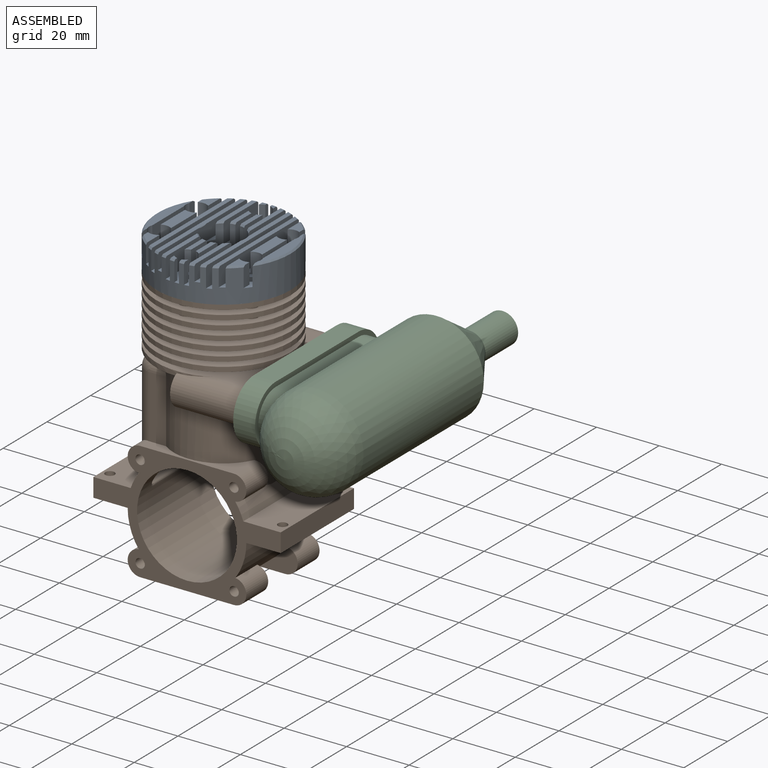
[diagram: assembled view]
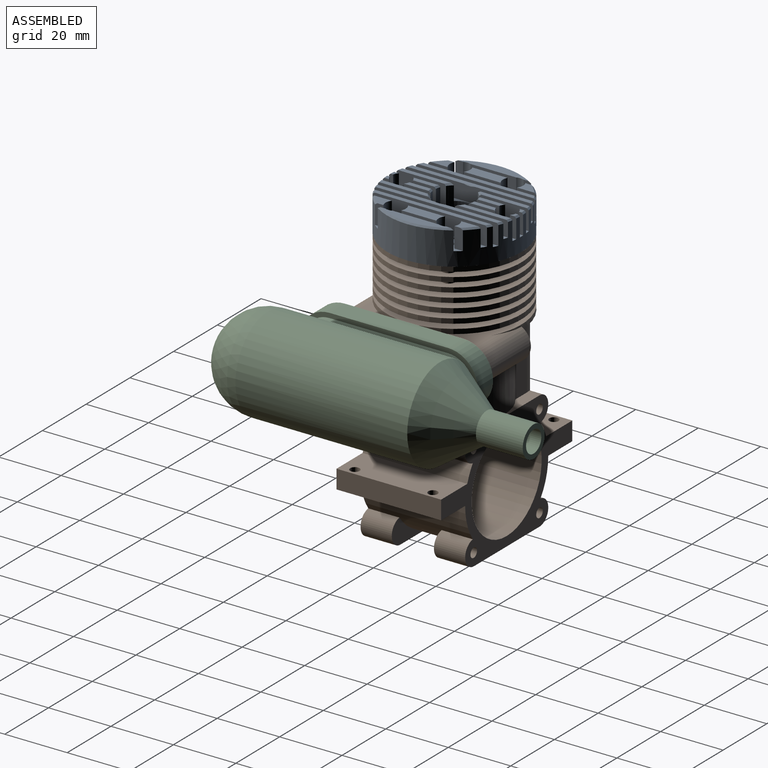
[diagram: assembled view, second angle]
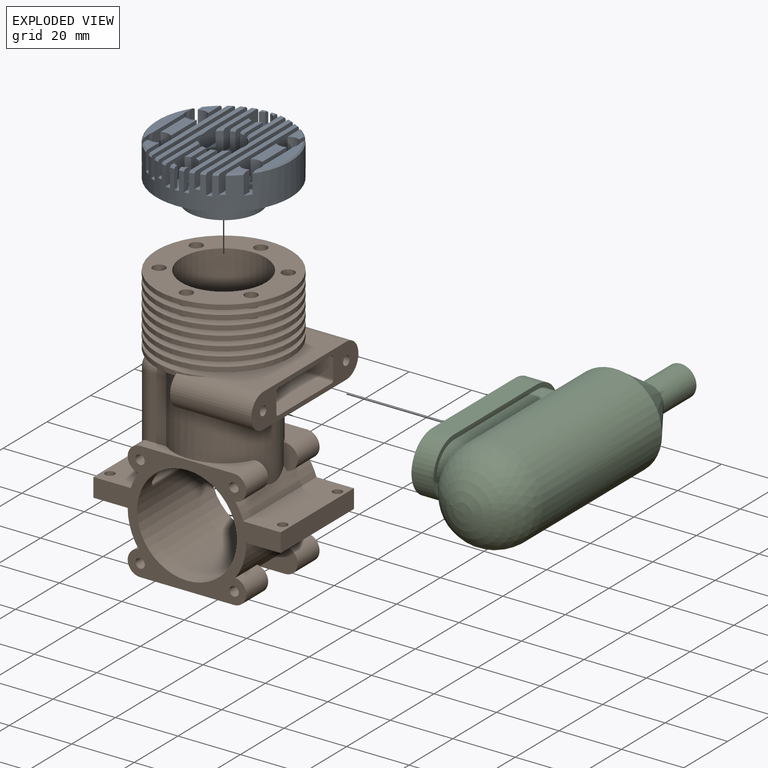
[diagram: exploded view]
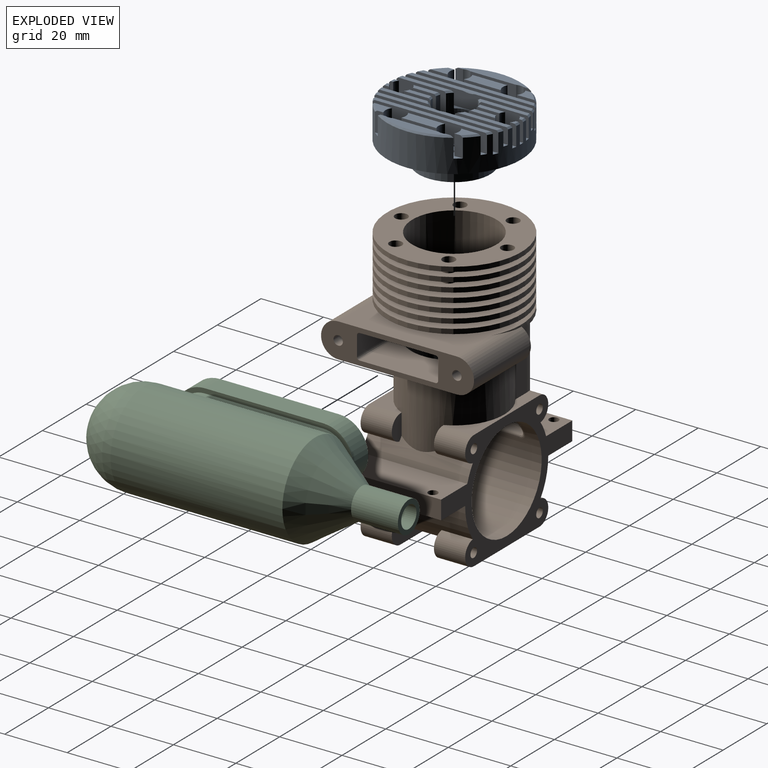
[diagram: exploded view, second angle]
ASSEMBLY  parts=3 mates=3
PART A: 145 faces, bbox 43.7x43.7x18.7 mm
  f0: plane 11.83x3.5mm, normal (0,0,1), area 38mm2, adj f3,f8,f139,f142
  f1: plane 5.6x3.5mm, normal (0,0,1), area 12.4mm2, adj f2,f7,f53,f142
  f2: plane 6.23x6.01mm, normal (1,0,0), area 37.2mm2, adj f1,f53,f54,f117,f142
  f3: plane 11.83x6mm, normal (1,0,0), area 71mm2, adj f0,f117,f139,f142
  f4: plane 22.44x3.25mm, normal (0,0,1), area 48.7mm2, adj f5,f6,f11,f103,f141,f144
  f5: plane 6.51x2.46mm, normal (1,0,0), area 15.7mm2, adj f4,f54,f103,f122,f144
  f6: plane 14.64x6.5mm, normal (1,0,0), area 95.1mm2, adj f4,f122,f141,f144
  f7: plane 6.51x2.72mm, normal (-1,0,0), area 17.4mm2, adj f1,f53,f54,f122,f142
  f8: plane 11.26x6.5mm, normal (-1,0,0), area 73.2mm2, adj f0,f122,f139,f142
  f9: plane 5.6x3.5mm, normal (0,0,1), area 12.4mm2, adj f10,f12,f52,f139
  f10: plane 6.23x6.01mm, normal (1,0,0), area 37.2mm2, adj f9,f52,f54,f117,f139
  f11: plane 6.51x2.46mm, normal (1,0,0), area 15.7mm2, adj f4,f54,f103,f122,f141
  f12: plane 6.51x2.72mm, normal (-1,0,0), area 17.4mm2, adj f9,f52,f54,f122,f139
  f13: plane 1.64x1.5mm, normal (0,0,1), area 1.7mm2, adj f19,f25,f79,f137
  f14: plane 8.03x1.5mm, normal (0,0,1), area 11mm2, adj f18,f24,f81,f136
  f15: plane 1.64x1.5mm, normal (0,0,1), area 1.7mm2, adj f21,f23,f82,f135
  f16: plane 8.03x1.5mm, normal (0,0,1), area 11mm2, adj f20,f22,f84,f134
  f17: plane 16.19x7.5mm, normal (0,0,1), area 79.1mm2, adj f18,f19,f20,f21,f22,f23,f24,f25
  f18: plane 7.38x6.5mm, normal (-1,0,0), area 47.9mm2, adj f14,f17,f76,f81,f136
  f19: plane 6.5x1.32mm, normal (-1,0,0), area 8.5mm2, adj f13,f17,f54,f79,f137
  f20: plane 7.38x6.5mm, normal (1,0,0), area 47.9mm2, adj f16,f17,f76,f84,f134
  f21: plane 6.5x1.32mm, normal (1,0,0), area 8.5mm2, adj f15,f17,f54,f82,f135
  f22: plane 8.56x6.51mm, normal (-1,0,0), area 55.5mm2, adj f16,f17,f76,f84,f134
  f23: plane 6.5x2.04mm, normal (-1,0,0), area 13.1mm2, adj f15,f17,f54,f82,f135
  f24: plane 8.56x6.51mm, normal (1,0,0), area 55.5mm2, adj f14,f17,f76,f81,f136
  f25: plane 6.5x2.04mm, normal (1,0,0), area 13.1mm2, adj f13,f17,f54,f79,f137
  f26: plane 22.44x3.25mm, normal (0,0,1), area 48.7mm2, adj f31,f32,f37,f55,f130,f133
  f27: plane 11.83x6mm, normal (-1,0,0), area 71mm2, adj f30,f118,f129,f132
  f28: plane 6.23x6.01mm, normal (-1,0,0), area 37.2mm2, adj f29,f54,f56,f118,f132
  f29: plane 5.6x3.5mm, normal (0,0,1), area 12.4mm2, adj f28,f34,f56,f132
  f30: plane 11.83x3.5mm, normal (0,0,1), area 38mm2, adj f27,f33,f129,f132
  f31: plane 14.64x6.5mm, normal (-1,0,0), area 95.1mm2, adj f26,f121,f130,f133
  f32: plane 6.51x2.46mm, normal (-1,0,0), area 15.7mm2, adj f26,f54,f55,f121,f133
  f33: plane 11.26x6.5mm, normal (1,0,0), area 73.2mm2, adj f30,f121,f129,f132
  f34: plane 6.51x2.72mm, normal (1,0,0), area 17.4mm2, adj f29,f54,f56,f121,f132
  f35: plane 6.23x6.01mm, normal (-1,0,0), area 37.2mm2, adj f36,f54,f65,f118,f129
  f36: plane 5.6x3.5mm, normal (0,0,1), area 12.4mm2, adj f35,f38,f65,f129
  f37: plane 6.51x2.46mm, normal (-1,0,0), area 15.7mm2, adj f26,f54,f55,f121,f130
  f38: plane 6.51x2.72mm, normal (1,0,0), area 17.4mm2, adj f36,f54,f65,f121,f129
  f39: plane 8.03x1.5mm, normal (0,0,1), area 11mm2, adj f44,f49,f85,f124
  f40: plane 1.64x1.5mm, normal (0,0,1), area 1.7mm2, adj f43,f48,f83,f123
  f41: plane 8.03x1.5mm, normal (0,0,1), area 11mm2, adj f46,f51,f99,f126
  f42: plane 1.64x1.5mm, normal (0,0,1), area 1.7mm2, adj f45,f50,f98,f125
  f43: plane 6.5x1.32mm, normal (1,0,0), area 8.5mm2, adj f40,f47,f54,f83,f123
  f44: plane 7.38x6.5mm, normal (1,0,0), area 47.9mm2, adj f39,f47,f76,f85,f124
  f45: plane 6.5x1.32mm, normal (-1,0,0), area 8.5mm2, adj f42,f47,f54,f98,f125
  f46: plane 7.38x6.5mm, normal (-1,0,0), area 47.9mm2, adj f41,f47,f76,f99,f126
  f47: plane 16.19x7.5mm, normal (0,0,1), area 79.1mm2, adj f43,f44,f45,f46,f48,f49,f50,f51
  f48: plane 6.5x2.04mm, normal (-1,0,0), area 13.1mm2, adj f40,f47,f54,f83,f123
  f49: plane 8.56x6.51mm, normal (-1,0,0), area 55.5mm2, adj f39,f47,f76,f85,f124
  f50: plane 6.5x2.04mm, normal (1,0,0), area 13.1mm2, adj f42,f47,f54,f98,f125
  f51: plane 8.56x6.51mm, normal (1,0,0), area 55.5mm2, adj f41,f47,f76,f99,f126
  f52: cone r=21.5mm half-angle=45deg, axis (0,0,-1), area 3.4mm2, adj f9,f10,f12,f54
  f53: cone r=21.5mm half-angle=45deg, axis (0,0,-1), area 3.4mm2, adj f1,f2,f7,f54
  f54: cylinder r=21.5mm len=43mm, axis (0,0,-1), area 1197.5mm2, adj f2,f5,f7,f10,f11,f12,f17,f19
  f55: cone r=21.5mm half-angle=45deg, axis (0,0,-1), area 17.5mm2, adj f26,f32,f37,f54
  f56: cone r=21.5mm half-angle=45deg, axis (0,0,-1), area 3.4mm2, adj f28,f29,f34,f54
  f57: plane 17.05x5.03mm, normal (1,0,0), area 84.8mm2, adj f54,f71,f73,f75,f76,f120
  f58: plane 17.05x5.03mm, normal (1,0,0), area 84.8mm2, adj f54,f76,f77,f78,f80,f120
  f59: plane 41.53x5.71mm, normal (-1,0,0), area 203.3mm2, adj f54,f69,f70,f72,f74,f120
  f60: plane 17.05x5.03mm, normal (-1,0,0), area 84.8mm2, adj f54,f76,f86,f88,f90,f119
  f61: plane 17.05x5.03mm, normal (-1,0,0), area 84.8mm2, adj f54,f76,f87,f89,f91,f119
  f62: plane 41.53x5.71mm, normal (1,0,0), area 203.2mm2, adj f54,f92,f93,f94,f106,f119
  f63: plane 36.65x6mm, normal (1,0,0), area 219.6mm2, adj f54,f66,f67,f68,f118
  f64: plane 36.65x6mm, normal (-1,0,0), area 219.6mm2, adj f54,f95,f96,f97,f117
  f65: cone r=21.5mm half-angle=45deg, axis (0,0,-1), area 3.4mm2, adj f35,f36,f38,f54
  f66: cone r=21.5mm half-angle=45deg, axis (0,0,-1), area 1.2mm2, adj f54,f63,f67,f114
  f67: plane 37.2x1.5mm, normal (0,0,1), area 54.5mm2, adj f63,f66,f68,f114
  f68: cone r=21.5mm half-angle=45deg, axis (0,0,-1), area 1.2mm2, adj f54,f63,f67,f114
  f69: cone r=21.5mm half-angle=45deg, axis (0,0,-1), area 1.1mm2, adj f54,f59,f70,f115
  f70: plane 39.77x1.5mm, normal (0,0,1), area 58.2mm2, adj f59,f69,f72,f74,f115
  f71: plane 16.03x1.5mm, normal (0,0,1), area 22.8mm2, adj f57,f73,f75,f113
  f72: cone r=21.5mm half-angle=45deg, axis (0,0,-1), area 1.1mm2, adj f54,f59,f70,f115
  f73: cone r=21.5mm half-angle=45deg, axis (0,0,-1), area 1.1mm2, adj f54,f57,f71,f113
  f74: cone r=6.5mm half-angle=45deg, axis (0,0,1), area 0mm2, adj f59,f70
  f75: cone r=6.5mm half-angle=45deg, axis (0,0,1), area 1.4mm2, adj f57,f71,f76,f113
  f76: cylinder r=6.5mm len=13mm, axis (0,0,1), area 255.4mm2, adj f17,f18,f20,f22,f24,f44,f46,f47
  f77: plane 16.03x1.5mm, normal (0,0,1), area 22.8mm2, adj f58,f78,f80,f112
  f78: cone r=21.5mm half-angle=45deg, axis (0,0,-1), area 1.1mm2, adj f54,f58,f77,f112
  f79: cone r=21.5mm half-angle=45deg, axis (0,0,-1), area 1.1mm2, adj f13,f19,f25,f54
  f80: cone r=6.5mm half-angle=45deg, axis (0,0,1), area 1.4mm2, adj f58,f76,f77,f112
  f81: cone r=6.5mm half-angle=45deg, axis (0,0,1), area 1.1mm2, adj f14,f18,f24,f76
  f82: cone r=21.5mm half-angle=45deg, axis (0,0,-1), area 1.1mm2, adj f15,f21,f23,f54
  f83: cone r=21.5mm half-angle=45deg, axis (0,0,-1), area 1.1mm2, adj f40,f43,f48,f54
  f84: cone r=6.5mm half-angle=45deg, axis (0,0,1), area 1.1mm2, adj f16,f20,f22,f76
  f85: cone r=6.5mm half-angle=45deg, axis (0,0,1), area 1.1mm2, adj f39,f44,f49,f76
  f86: plane 16.03x1.5mm, normal (0,0,1), area 22.8mm2, adj f60,f88,f90,f111
  f87: plane 16.03x1.5mm, normal (0,0,1), area 22.8mm2, adj f61,f89,f91,f110
  f88: cone r=21.5mm half-angle=45deg, axis (0,0,-1), area 1.1mm2, adj f54,f60,f86,f111
  f89: cone r=21.5mm half-angle=45deg, axis (0,0,-1), area 1.1mm2, adj f54,f61,f87,f110
  f90: cone r=6.5mm half-angle=45deg, axis (0,0,1), area 1.4mm2, adj f60,f76,f86,f111
  f91: cone r=6.5mm half-angle=45deg, axis (0,0,1), area 1.4mm2, adj f61,f76,f87,f110
  f92: plane 39.77x1.5mm, normal (0,0,1), area 58.2mm2, adj f62,f93,f94,f106,f107
  f93: cone r=21.5mm half-angle=45deg, axis (0,0,-1), area 1.1mm2, adj f54,f62,f92,f107
  f94: cone r=21.5mm half-angle=45deg, axis (0,0,-1), area 1.1mm2, adj f54,f62,f92,f107
  f95: plane 37.2x1.5mm, normal (0,0,1), area 54.5mm2, adj f64,f96,f97,f108
  f96: cone r=21.5mm half-angle=45deg, axis (0,0,-1), area 1.2mm2, adj f54,f64,f95,f108
  f97: cone r=21.5mm half-angle=45deg, axis (0,0,-1), area 1.2mm2, adj f54,f64,f95,f108
  f98: cone r=21.5mm half-angle=45deg, axis (0,0,-1), area 1.1mm2, adj f42,f45,f50,f54
  f99: cone r=6.5mm half-angle=45deg, axis (0,0,1), area 1.1mm2, adj f41,f46,f51,f76
  f100: plane 23x23mm, normal (0,0,-1), area 396.5mm2, adj f101,f104
  f101: cylinder r=11.5mm len=23mm, axis (0,0,-1), area 505.8mm2, adj f100,f102
  f102: plane 43x43mm, normal (0,0,-1), area 994.3mm2, adj f54,f101,f127,f128,f131,f138,f140,f143
  f103: cone r=21.5mm half-angle=45deg, axis (0,0,-1), area 17.5mm2, adj f4,f5,f11,f54
  f104: cylinder r=2.46mm len=8mm, axis (0,0,1), area 123.7mm2, adj f100,f105
  f105: plane 13x13mm, normal (0,0,1), area 113.7mm2, adj f76,f104
  f106: cone r=6.5mm half-angle=45deg, axis (0,0,1), area 0mm2, adj f62,f92
  f107: plane 39.71x6.5mm, normal (-1,0,0), area 257.8mm2, adj f54,f92,f93,f94,f109
  f108: plane 38.33x6.5mm, normal (1,0,0), area 248.8mm2, adj f54,f95,f96,f97,f109
  f109: plane 39.71x1.5mm, normal (0,0,1), area 58.6mm2, adj f54,f107,f108
  f110: plane 15.88x6.51mm, normal (1,0,0), area 102.8mm2, adj f47,f54,f76,f87,f89,f91
  f111: plane 15.88x6.51mm, normal (1,0,0), area 102.8mm2, adj f17,f54,f76,f86,f88,f90
  f112: plane 15.88x6.51mm, normal (-1,0,0), area 102.8mm2, adj f47,f54,f76,f77,f78,f80
  f113: plane 15.88x6.51mm, normal (-1,0,0), area 102.8mm2, adj f17,f54,f71,f73,f75,f76
  f114: plane 38.33x6.5mm, normal (-1,0,0), area 248.8mm2, adj f54,f66,f67,f68,f116
  f115: plane 39.71x6.5mm, normal (1,0,0), area 257.8mm2, adj f54,f69,f70,f72,f116
  f116: plane 39.71x1.5mm, normal (0,0,1), area 58.6mm2, adj f54,f114,f115
  f117: plane 36.64x1.5mm, normal (0,0,1), area 44.3mm2, adj f2,f3,f10,f54,f64,f139,f142
  f118: plane 36.64x1.5mm, normal (0,0,1), area 44.3mm2, adj f27,f28,f35,f54,f63,f129,f132
  f119: plane 41.7x1.5mm, normal (0,0,1), area 55.4mm2, adj f54,f60,f61,f62,f76
  f120: plane 41.7x1.5mm, normal (0,0,1), area 55.4mm2, adj f54,f57,f58,f59,f76
  f121: plane 28.16x6.5mm, normal (0,0,1), area 78.3mm2, adj f31,f32,f33,f34,f37,f38,f54,f128
  f122: plane 28.16x6.5mm, normal (0,0,1), area 78.3mm2, adj f5,f6,f7,f8,f11,f12,f54,f139
  f123: cylinder r=3.25mm len=6.5mm, axis (0,0,1), area 11.2mm2, adj f40,f43,f47,f48
  f124: cylinder r=3.25mm len=6.5mm, axis (0,0,1), area 11.2mm2, adj f39,f44,f47,f49
  f125: cylinder r=3.25mm len=6.5mm, axis (0,0,1), area 11.2mm2, adj f42,f45,f47,f50
  f126: cylinder r=3.25mm len=6.5mm, axis (0,0,1), area 11.2mm2, adj f41,f46,f47,f51
  f127: cylinder r=1.5mm len=4.5mm, axis (0,0,1), area 42.4mm2, adj f47,f102
  f128: cylinder r=1.5mm len=4.5mm, axis (0,0,1), area 42.4mm2, adj f102,f121
  f129: cylinder r=3.25mm len=6.5mm, axis (0,0,1), area 51.2mm2, adj f27,f30,f33,f35,f36,f38,f118,f121
  f130: cylinder r=3.25mm len=6.5mm, axis (0,0,1), area 15.7mm2, adj f26,f31,f37,f121
  f131: cylinder r=1.5mm len=4.5mm, axis (0,0,1), area 42.4mm2, adj f102,f121
  f132: cylinder r=3.25mm len=6.5mm, axis (0,0,1), area 51.2mm2, adj f27,f28,f29,f30,f33,f34,f118,f121
  f133: cylinder r=3.25mm len=6.5mm, axis (0,0,1), area 15.7mm2, adj f26,f31,f32,f121
  f134: cylinder r=3.25mm len=6.5mm, axis (0,0,1), area 11.2mm2, adj f16,f17,f20,f22
  f135: cylinder r=3.25mm len=6.5mm, axis (0,0,1), area 11.2mm2, adj f15,f17,f21,f23
  f136: cylinder r=3.25mm len=6.5mm, axis (0,0,1), area 11.2mm2, adj f14,f17,f18,f24
  f137: cylinder r=3.25mm len=6.5mm, axis (0,0,1), area 11.2mm2, adj f13,f17,f19,f25
  f138: cylinder r=1.5mm len=4.5mm, axis (0,0,1), area 42.4mm2, adj f17,f102
  f139: cylinder r=3.25mm len=6.5mm, axis (0,0,1), area 51.2mm2, adj f0,f3,f8,f9,f10,f12,f117,f122
  f140: cylinder r=1.5mm len=4.5mm, axis (0,0,1), area 42.4mm2, adj f102,f122
  f141: cylinder r=3.25mm len=6.5mm, axis (0,0,1), area 15.7mm2, adj f4,f6,f11,f122
  f142: cylinder r=3.25mm len=6.5mm, axis (0,0,1), area 51.2mm2, adj f0,f1,f2,f3,f7,f8,f117,f122
  f143: cylinder r=1.5mm len=4.5mm, axis (0,0,1), area 42.4mm2, adj f102,f122
  f144: cylinder r=3.25mm len=6.5mm, axis (0,0,1), area 15.7mm2, adj f4,f5,f6,f122
PART B: 197 faces, bbox 60.8x49x86.5 mm
  f0: cylinder r=16mm len=11mm, axis (0,0,-1), area 19.6mm2, adj f39,f44,f90,f110
  f1: cylinder r=16mm len=11mm, axis (0,0,-1), area 19.6mm2, adj f43,f48,f89,f109
  f2: cylinder r=16mm len=12.7mm, axis (0,0,-1), area 19.6mm2, adj f39,f44,f106,f110
  f3: cylinder r=16mm len=12.7mm, axis (0,0,-1), area 19.6mm2, adj f43,f48,f105,f109
  f4: cylinder r=16mm len=11mm, axis (0,0,-1), area 19.6mm2, adj f39,f44,f102,f106
  f5: cylinder r=16mm len=11mm, axis (0,0,-1), area 19.6mm2, adj f43,f48,f101,f105
  f6: cylinder r=16mm len=11mm, axis (0,0,-1), area 19.6mm2, adj f39,f44,f98,f102
  f7: cylinder r=16mm len=11mm, axis (0,0,-1), area 19.6mm2, adj f43,f48,f97,f101
  f8: cylinder r=16mm len=12.7mm, axis (0,0,-1), area 19.6mm2, adj f39,f44,f94,f98
  f9: cylinder r=16mm len=12.7mm, axis (0,0,-1), area 19.6mm2, adj f43,f48,f93,f97
  f10: cylinder r=4mm len=10mm, axis (0,1,0), area 120.9mm2, adj f12,f13,f14,f25
  f11: cylinder r=4mm len=7.97mm, axis (0,1,0), area 64.5mm2, adj f12,f14,f15,f16,f17,f82
  f12: plane 30x10mm, normal (0,0,1), area 90.9mm2, adj f10,f11,f13,f14,f24,f71,f82
  f13: plane 7.97x4.49mm, normal (0,-1,0), area 28.4mm2, adj f10,f12,f24,f25
  f14: plane 60x38mm, normal (0,1,0), area 670.5mm2, adj f10,f11,f12,f17,f25,f31,f32,f34
  f15: cylinder r=5mm len=7.76mm, axis (0,0,-1), area 19.9mm2, adj f11,f16,f17,f81
  f16: cylinder r=21.5mm len=33mm, axis (0,0,-1), area 716.9mm2, adj f11,f15,f19,f68,f81,f82,f159,f162
  f17: cylinder r=19mm len=5.28mm, axis (0,1,0), area 25.9mm2, adj f11,f14,f15,f81
  f18: plane 30x10mm, normal (0,0,1), area 90.9mm2, adj f19,f20,f21,f22,f23,f24,f159
  f19: cylinder r=4mm len=7.97mm, axis (0,-1,0), area 64.5mm2, adj f16,f18,f22,f37,f159,f162
  f20: cylinder r=4mm len=10mm, axis (0,-1,0), area 120.9mm2, adj f18,f21,f22,f25
  f21: plane 7.97x4.49mm, normal (0,1,0), area 28.4mm2, adj f18,f20,f24,f25
  f22: plane 60x38mm, normal (0,-1,0), area 670.5mm2, adj f18,f19,f20,f25,f26,f27,f29,f36
  f23: plane 20x5.1mm, normal (0,-1,0), area 102.1mm2, adj f18,f24,f159,f161
  f24: cylinder r=16mm len=34.75mm, axis (0,0,-1), area 1505.8mm2, adj f12,f13,f18,f21,f23,f25,f69,f70
  f25: cylinder r=19mm len=33.5mm, axis (0,1,0), area 188.4mm2, adj f10,f13,f14,f20,f21,f22,f24,f85
  f26: cylinder r=4mm len=10mm, axis (0,-1,0), area 120.9mm2, adj f22,f28,f29,f36
  f27: cylinder r=4mm len=10mm, axis (0,-1,0), area 120.9mm2, adj f22,f29,f30,f36
  f28: plane 19x7.97mm, normal (0,1,0), area 58.3mm2, adj f26,f29,f36
  f29: plane 30x10mm, normal (0,0,-1), area 300mm2, adj f22,f26,f27,f28,f30
  f30: plane 19x7.97mm, normal (0,1,0), area 58.3mm2, adj f27,f29,f36
  f31: cylinder r=4mm len=10mm, axis (0,1,0), area 120.9mm2, adj f14,f34,f35,f36
  f32: cylinder r=4mm len=10mm, axis (0,1,0), area 120.9mm2, adj f14,f33,f34,f36
  f33: plane 19x7.97mm, normal (0,-1,0), area 58.3mm2, adj f32,f34,f36
  f34: plane 30x10mm, normal (0,0,-1), area 300mm2, adj f14,f31,f32,f33,f35
  f35: plane 19x7.97mm, normal (0,-1,0), area 58.3mm2, adj f31,f34,f36
  f36: cylinder r=19mm len=38mm, axis (0,1,0), area 1276.4mm2, adj f14,f22,f26,f27,f28,f30,f31,f32
  f37: cylinder r=19mm len=5.28mm, axis (0,1,0), area 25.9mm2, adj f19,f22,f81,f162
  f38: cylinder r=21.5mm len=43mm, axis (0,0,1), area 202.6mm2, adj f39,f40
  f39: plane 43x43mm, normal (0,0,-1), area 578.7mm2, adj f0,f2,f4,f6,f8,f38,f41,f90
  f40: plane 43x43mm, normal (0,0,1), area 804.2mm2, adj f38,f111,f180,f182,f184,f186,f188,f190
  f41: cylinder r=16mm len=11mm, axis (0,0,-1), area 19.6mm2, adj f39,f44,f90,f94
  f42: cylinder r=21.5mm len=43mm, axis (0,0,1), area 202.6mm2, adj f43,f44
  f43: plane 43x43mm, normal (0,0,-1), area 578.7mm2, adj f1,f3,f5,f7,f9,f42,f45,f89
  f44: plane 43x43mm, normal (0,0,1), area 578.7mm2, adj f0,f2,f4,f6,f8,f41,f42,f90
  f45: cylinder r=16mm len=11mm, axis (0,0,-1), area 19.6mm2, adj f43,f48,f89,f93
  f46: cylinder r=21.5mm len=43mm, axis (0,0,1), area 202.6mm2, adj f47,f48
  f47: plane 43x43mm, normal (0,0,-1), area 578.7mm2, adj f46,f49,f88,f92,f96,f100,f104,f108
  f48: plane 43x43mm, normal (0,0,1), area 578.7mm2, adj f1,f3,f5,f7,f9,f45,f46,f89
  f49: cylinder r=16mm len=32mm, axis (0,0,-1), area 139.7mm2, adj f47,f52,f87,f88,f91,f92,f95,f96
  f50: cylinder r=21.5mm len=43mm, axis (0,0,1), area 202.6mm2, adj f51,f52
  f51: plane 43x43mm, normal (0,0,-1), area 648mm2, adj f50,f53
  f52: plane 43x43mm, normal (0,0,1), area 648mm2, adj f49,f50
  f53: cylinder r=16mm len=32mm, axis (0,0,-1), area 150.8mm2, adj f51,f56
  f54: cylinder r=21.5mm len=43mm, axis (0,0,1), area 202.6mm2, adj f55,f56
  f55: plane 43x43mm, normal (0,0,-1), area 648mm2, adj f54,f57
  f56: plane 43x43mm, normal (0,0,1), area 648mm2, adj f53,f54
  f57: cylinder r=16mm len=32mm, axis (0,0,-1), area 150.8mm2, adj f55,f62
  f58: cylinder r=21.5mm len=43mm, axis (0,0,1), area 202.6mm2, adj f59,f60
  f59: plane 43x43mm, normal (0,0,-1), area 648mm2, adj f58,f65
  f60: plane 43x43mm, normal (0,0,1), area 648mm2, adj f58,f61
  f61: cylinder r=16mm len=32mm, axis (0,0,-1), area 150.8mm2, adj f60,f63
  f62: plane 43x43mm, normal (0,0,1), area 648mm2, adj f57,f64
  f63: plane 43x43mm, normal (0,0,-1), area 648mm2, adj f61,f64
  f64: cylinder r=21.5mm len=43mm, axis (0,0,1), area 202.6mm2, adj f62,f63
  f65: cylinder r=16mm len=32mm, axis (0,0,-1), area 150.8mm2, adj f59,f78
  f66: cylinder r=21.5mm len=43mm, axis (0,0,1), area 107.6mm2, adj f72,f73,f75,f77,f78,f79
  f67: sphere r=5mm, area 26.6mm2, adj f68,f70,f82
  f68: torus R=16.5mm, axis (0,0,1), area 156.5mm2, adj f16,f67,f69,f160
  f69: plane 16x2.64mm, normal (0,0,1), area 8.4mm2, adj f24,f68,f70,f161
  f70: cylinder r=5mm len=5.1mm, axis (1,0,0), area 25mm2, adj f24,f67,f69,f71
  f71: plane 20x5.1mm, normal (0,1,0), area 102.1mm2, adj f12,f24,f70,f82
  f72: plane 43x21.5mm, normal (0,0,-1), area 324mm2, adj f24,f66,f73,f79
  f73: plane 10.4x8.5mm, normal (-1,0,0), area 65.7mm2, adj f24,f66,f72,f75,f76,f196
  f74: plane 49.03x11.03mm, normal (1,0,0), area 291.6mm2, adj f75,f76,f77,f78,f112,f113,f114,f115
  f75: cylinder r=5.5mm len=26mm, axis (-1,0,0), area 436.2mm2, adj f66,f73,f74,f76,f78
  f76: plane 38x26mm, normal (0,0,-1), area 585.9mm2, adj f24,f73,f74,f75,f77,f79
  f77: cylinder r=5.5mm len=26mm, axis (-1,0,0), area 436.2mm2, adj f66,f74,f76,f78,f79
  f78: plane 47.5x43mm, normal (0,0,1), area 943.8mm2, adj f65,f66,f74,f75,f77
  f79: plane 10.4x8.5mm, normal (-1,0,0), area 65.7mm2, adj f24,f66,f72,f76,f77,f195
  f80: plane 33.5x6mm, normal (-1,0,0), area 201mm2, adj f14,f22,f81,f83
  f81: plane 33.5x11.97mm, normal (0,0,1), area 331.9mm2, adj f14,f15,f16,f17,f22,f37,f80,f162
  f82: cylinder r=5mm len=22.76mm, axis (0,0,-1), area 110.7mm2, adj f11,f12,f16,f67,f71
  f83: plane 33.5x11mm, normal (0,0,-1), area 354.4mm2, adj f14,f22,f36,f80,f193,f194
  f84: plane 33.5x11mm, normal (0,0,-1), area 354.4mm2, adj f14,f22,f36,f86,f191,f192
  f85: plane 33.5x11.97mm, normal (0,0,1), area 386.9mm2, adj f14,f22,f25,f86,f191,f192
  f86: plane 33.5x6mm, normal (1,0,0), area 201mm2, adj f14,f22,f84,f85
  f87: plane 4.3x3.26mm, normal (0,0,-1), area 11.5mm2, adj f49,f88
  f88: cylinder r=2.15mm len=4.3mm, axis (0,0,1), area 4.5mm2, adj f47,f49,f87
  f89: cylinder r=2.15mm len=4.3mm, axis (0,0,1), area 13.6mm2, adj f1,f43,f45,f48
  f90: cylinder r=2.15mm len=4.3mm, axis (0,0,1), area 13.6mm2, adj f0,f39,f41,f44
  f91: plane 4.3x4.03mm, normal (0,0,-1), area 11.5mm2, adj f49,f92
  f92: cylinder r=2.15mm len=4.3mm, axis (0,0,1), area 4.5mm2, adj f47,f49,f91
  f93: cylinder r=2.15mm len=4.3mm, axis (0,0,1), area 13.6mm2, adj f9,f43,f45,f48
  f94: cylinder r=2.15mm len=4.3mm, axis (0,0,1), area 13.6mm2, adj f8,f39,f41,f44
  f95: plane 4.3x4.03mm, normal (0,0,-1), area 11.5mm2, adj f49,f96
  f96: cylinder r=2.15mm len=4.3mm, axis (0,0,1), area 4.5mm2, adj f47,f49,f95
  f97: cylinder r=2.15mm len=4.3mm, axis (0,0,1), area 13.6mm2, adj f7,f9,f43,f48
  f98: cylinder r=2.15mm len=4.3mm, axis (0,0,1), area 13.6mm2, adj f6,f8,f39,f44
  f99: plane 4.3x3.26mm, normal (0,0,-1), area 11.5mm2, adj f49,f100
  f100: cylinder r=2.15mm len=4.3mm, axis (0,0,1), area 4.5mm2, adj f47,f49,f99
  f101: cylinder r=2.15mm len=4.3mm, axis (0,0,1), area 13.6mm2, adj f5,f7,f43,f48
  f102: cylinder r=2.15mm len=4.3mm, axis (0,0,1), area 13.6mm2, adj f4,f6,f39,f44
  f103: plane 4.3x4.03mm, normal (0,0,-1), area 11.5mm2, adj f49,f104
  f104: cylinder r=2.15mm len=4.3mm, axis (0,0,1), area 4.5mm2, adj f47,f49,f103
  f105: cylinder r=2.15mm len=4.3mm, axis (0,0,1), area 13.6mm2, adj f3,f5,f43,f48
  f106: cylinder r=2.15mm len=4.3mm, axis (0,0,1), area 13.6mm2, adj f2,f4,f39,f44
  f107: plane 4.3x4.03mm, normal (0,0,-1), area 11.5mm2, adj f49,f108
  f108: cylinder r=2.15mm len=4.3mm, axis (0,0,1), area 4.5mm2, adj f47,f49,f107
  f109: cylinder r=2.15mm len=4.3mm, axis (0,0,1), area 13.6mm2, adj f1,f3,f43,f48
  f110: cylinder r=2.15mm len=4.3mm, axis (0,0,1), area 13.6mm2, adj f0,f2,f39,f44
  f111: cylinder r=13.5mm len=58.63mm, axis (0,0,1), area 3399.3mm2, adj f40,f137,f139,f141,f142,f143,f144,f149
  f112: plane 24.01x17.87mm, normal (0,0,-1), area 321.4mm2, adj f74,f148,f154,f155
  f113: plane 22.23x6mm, normal (0,1,0), area 133.4mm2, adj f74,f147,f148,f149
  f114: plane 24.01x17.87mm, normal (0,0,1), area 321.4mm2, adj f74,f147,f152,f153
  f115: plane 22.23x6mm, normal (0,-1,0), area 133.4mm2, adj f74,f153,f154,f158
  f116: plane 19.45x2.77mm, normal (0,0,1), area 36.6mm2, adj f129,f130,f132,f133
  f117: cylinder r=3.5mm len=32mm, axis (0,0,-1), area 118.4mm2, adj f120,f121,f124,f132,f138
  f118: cylinder r=3.5mm len=32mm, axis (0,0,-1), area 118.4mm2, adj f119,f121,f126,f129,f134
  f119: plane 30.03x7.09mm, normal (0,1,0), area 185.8mm2, adj f118,f127,f136,f137
  f120: plane 30.02x7.09mm, normal (0,-1,0), area 185.8mm2, adj f117,f123,f140,f144
  f121: cylinder r=20mm len=32mm, axis (0,0,-1), area 647.9mm2, adj f117,f118,f125,f130
  f122: plane 16.02x4.43mm, normal (0,0,-1), area 33.7mm2, adj f123,f125,f127,f142
  f123: cylinder r=3.5mm len=7.08mm, axis (1,0,0), area 25.9mm2, adj f120,f122,f124,f143
  f124: sphere r=3.5mm, area 13mm2, adj f117,f123,f125
  f125: torus R=16.5mm, axis (0,0,1), area 104.2mm2, adj f121,f122,f124,f126
  f126: sphere r=3.5mm, area 13mm2, adj f118,f125,f127
  f127: cylinder r=3.5mm len=7.08mm, axis (-1,0,0), area 25.9mm2, adj f119,f122,f126,f139
  f128: cylinder r=16mm len=33.5mm, axis (0,1,0), area 2498.2mm2, adj f14,f22,f131,f133,f134,f135,f136,f138
  f129: bspline ~2.57x2.22mm, area 2.8mm2, adj f116,f118,f130,f131
  f130: bspline ~19.39x4.25mm, area 32.4mm2, adj f116,f121,f129,f132
  f131: bspline ~2.67x2.32mm, area 4.6mm2, adj f128,f129,f133,f134
  f132: bspline ~2.57x2.22mm, area 2.8mm2, adj f116,f117,f130,f135
  f133: bspline ~19.43x1.29mm, area 39.2mm2, adj f116,f128,f131,f135
  f134: bspline ~2.4x1.67mm, area 2.7mm2, adj f118,f128,f131,f136
  f135: bspline ~2.67x2.32mm, area 4.6mm2, adj f128,f132,f133,f138
  f136: bspline ~7.83x7.37mm, area 15.5mm2, adj f119,f128,f134,f145
  f137: bspline ~25.39x0.51mm, area 12.6mm2, adj f111,f119,f139,f145
  f138: bspline ~2.4x1.67mm, area 2.8mm2, adj f117,f128,f135,f140
  f139: bspline ~5.25x4.5mm, area 7.8mm2, adj f111,f127,f137,f142
  f140: bspline ~7.51x7.11mm, area 15.5mm2, adj f120,f128,f138,f146
  f141: bspline ~29x20.55mm, area 73.7mm2, adj f111,f128,f145,f146
  f142: bspline ~16x3.43mm, area 26.6mm2, adj f111,f122,f139,f143
  f143: bspline ~5.25x4.5mm, area 7.8mm2, adj f111,f123,f142,f144
  f144: bspline ~25.39x0.51mm, area 12.6mm2, adj f111,f120,f143,f146
  f145: bspline ~1.24x1.1mm, area 0.4mm2, adj f136,f137,f141
  f146: bspline ~1.25x1.1mm, area 0.4mm2, adj f140,f141,f144
  f147: bspline ~28.33x1mm, area 32.6mm2, adj f74,f113,f114,f150
  f148: bspline ~28.33x1mm, area 32.6mm2, adj f74,f112,f113,f151
  f149: bspline ~6x0.26mm, area 1.6mm2, adj f111,f113,f150,f151
  f150: bspline ~4.63x2mm, area 4.7mm2, adj f111,f147,f149,f152
  f151: bspline ~4.63x2mm, area 4.7mm2, adj f111,f148,f149,f155
  f152: bspline ~24x7.51mm, area 43.9mm2, adj f111,f114,f150,f156
  f153: bspline ~28.33x1mm, area 32.6mm2, adj f74,f114,f115,f156
  f154: bspline ~28.33x1mm, area 32.6mm2, adj f74,f112,f115,f157
  f155: bspline ~24x7.51mm, area 43.9mm2, adj f111,f112,f151,f157
  f156: bspline ~4.63x2mm, area 4.7mm2, adj f111,f152,f153,f158
  f157: bspline ~4.63x2mm, area 4.7mm2, adj f111,f154,f155,f158
  f158: bspline ~6x0.26mm, area 1.6mm2, adj f111,f115,f156,f157
  f159: cylinder r=5mm len=22.76mm, axis (0,0,-1), area 110.7mm2, adj f16,f18,f19,f23,f160
  f160: sphere r=5mm, area 29.5mm2, adj f68,f159,f161
  f161: cylinder r=5mm len=5.1mm, axis (-1,0,0), area 25mm2, adj f23,f24,f69,f160
  f162: cylinder r=5mm len=7.76mm, axis (0,0,-1), area 19.9mm2, adj f16,f19,f37,f81
  f163: cone r=0mm half-angle=59deg, axis (0,-1,0), area 8.2mm2, adj f164
  f164: cylinder r=1.5mm len=3mm, axis (0,-1,0), area 28.3mm2, adj f22,f163
  f165: cone r=0mm half-angle=59deg, axis (0,-1,0), area 8.2mm2, adj f166
  f166: cylinder r=1.5mm len=3mm, axis (0,-1,0), area 28.3mm2, adj f22,f165
  f167: cone r=0mm half-angle=59deg, axis (0,-1,0), area 8.2mm2, adj f168
  f168: cylinder r=1.5mm len=3mm, axis (0,-1,0), area 28.3mm2, adj f22,f167
  f169: cone r=0mm half-angle=59deg, axis (0,-1,0), area 8.2mm2, adj f170
  f170: cylinder r=1.5mm len=3mm, axis (0,-1,0), area 28.3mm2, adj f22,f169
  f171: cone r=0mm half-angle=59deg, axis (0,1,0), area 8.2mm2, adj f172
  f172: cylinder r=1.5mm len=3mm, axis (0,1,0), area 28.3mm2, adj f14,f171
  f173: cone r=0mm half-angle=59deg, axis (0,1,0), area 8.2mm2, adj f174
  f174: cylinder r=1.5mm len=3mm, axis (0,1,0), area 28.3mm2, adj f14,f173
  f175: cone r=0mm half-angle=59deg, axis (0,1,0), area 8.2mm2, adj f176
  f176: cylinder r=1.5mm len=3mm, axis (0,1,0), area 28.3mm2, adj f14,f175
  f177: cone r=0mm half-angle=59deg, axis (0,1,0), area 8.2mm2, adj f178
  f178: cylinder r=1.5mm len=3mm, axis (0,1,0), area 28.3mm2, adj f14,f177
  f179: cone r=0mm half-angle=59deg, axis (0,0,1), area 14.7mm2, adj f180
  f180: cylinder r=2mm len=5mm, axis (0,0,1), area 62.8mm2, adj f40,f179
  f181: cone r=0mm half-angle=59deg, axis (0,0,1), area 14.7mm2, adj f182
  f182: cylinder r=2mm len=5mm, axis (0,0,1), area 62.8mm2, adj f40,f181
  f183: cone r=0mm half-angle=59deg, axis (0,0,1), area 14.7mm2, adj f184
  f184: cylinder r=2mm len=5mm, axis (0,0,1), area 62.8mm2, adj f40,f183
  f185: cone r=0mm half-angle=59deg, axis (0,0,1), area 14.7mm2, adj f186
  f186: cylinder r=2mm len=5mm, axis (0,0,1), area 62.8mm2, adj f40,f185
  f187: cone r=0mm half-angle=59deg, axis (0,0,1), area 14.7mm2, adj f188
  f188: cylinder r=2mm len=5mm, axis (0,0,1), area 62.8mm2, adj f40,f187
  f189: cone r=0mm half-angle=59deg, axis (0,0,1), area 14.7mm2, adj f190
  f190: cylinder r=2mm len=5mm, axis (0,0,1), area 62.8mm2, adj f40,f189
  f191: cylinder r=1.5mm len=6mm, axis (0,0,-1), area 56.5mm2, adj f84,f85
  f192: cylinder r=1.5mm len=6mm, axis (0,0,-1), area 56.5mm2, adj f84,f85
  f193: cylinder r=1.5mm len=6mm, axis (0,0,-1), area 56.5mm2, adj f81,f83
  f194: cylinder r=1.5mm len=6mm, axis (0,0,-1), area 56.5mm2, adj f81,f83
  f195: cylinder r=1.5mm len=26mm, axis (-1,0,0), area 245mm2, adj f74,f79
  f196: cylinder r=1.5mm len=26mm, axis (-1,0,0), area 245mm2, adj f73,f74
PART C: 37 faces, bbox 100x30x40 mm
  f0: cylinder r=13.5mm len=54.55mm, axis (-1,0,0), area 4309.5mm2, adj f5,f6,f26,f28,f31,f32
  f1: plane 11x10.56mm, normal (0,0,1), area 96.1mm2, adj f26,f28,f29,f31,f36
  f2: plane 38x5.31mm, normal (0,1,0), area 201.8mm2, adj f4,f15,f17,f18
  f3: plane 38x5.31mm, normal (0,-1,0), area 201.8mm2, adj f4,f15,f17,f18
  f4: cylinder r=15mm len=55mm, axis (-1,0,0), area 4338.5mm2, adj f2,f3,f9,f10,f17,f18
  f5: sphere r=13.5mm, area 1145.1mm2, adj f0
  f6: cone r=3.75mm half-angle=33.7deg, axis (1,0,0), area 962.8mm2, adj f0,f7
  f7: cylinder r=3.5mm len=15.45mm, axis (-1,0,0), area 339.9mm2, adj f6,f8
  f8: plane 10x10mm, normal (-1,0,0), area 40.1mm2, adj f7,f11
  f9: sphere r=15mm, area 1413.7mm2, adj f4,f12
  f10: cone r=5mm half-angle=33.7deg, axis (1,0,0), area 1132.7mm2, adj f4,f11
  f11: cylinder r=5mm len=15mm, axis (-1,0,0), area 471.2mm2, adj f8,f10
  f12: cylinder r=15mm len=7.75mm, axis (-1,0,0), area 5.3mm2, adj f9,f18
  f13: plane 38x7mm, normal (0,1,0), area 266mm2, adj f15,f16,f19,f20
  f14: plane 38x7mm, normal (0,-1,0), area 266mm2, adj f15,f16,f19,f20
  f15: plane 57x19mm, normal (0,0,-1), area 196.5mm2, adj f2,f3,f13,f14,f17,f18,f19,f20
  f16: plane 57x19mm, normal (0,0,1), area 196.5mm2, adj f13,f14,f19,f20,f21,f22,f23,f24
  f17: cylinder r=8mm len=16mm, axis (0,0,1), area 103.8mm2, adj f2,f3,f4,f15
  f18: cylinder r=8mm len=16mm, axis (0,0,-1), area 103.8mm2, adj f2,f3,f4,f12,f15
  f19: cylinder r=9.5mm len=19mm, axis (0,0,1), area 208.9mm2, adj f13,f14,f15,f16
  f20: cylinder r=9.5mm len=19mm, axis (0,0,1), area 208.9mm2, adj f13,f14,f15,f16
  f21: plane 38x1.5mm, normal (0,-1,0), area 57mm2, adj f16,f22,f24,f25
  f22: cylinder r=8mm len=16mm, axis (0,0,1), area 37.7mm2, adj f16,f21,f23,f25
  f23: plane 38x1.5mm, normal (0,1,0), area 57mm2, adj f16,f22,f24,f25
  f24: cylinder r=8mm len=16mm, axis (0,0,1), area 37.7mm2, adj f16,f21,f23,f25
  f25: plane 54x16mm, normal (0,0,1), area 296mm2, adj f21,f22,f23,f24,f26,f27,f28,f29
  f26: plane 38x11.17mm, normal (0,-1,0), area 327.8mm2, adj f0,f1,f25,f27,f29,f30,f31,f32
  f27: cylinder r=5.5mm len=11mm, axis (0,0,1), area 25.9mm2, adj f25,f26,f28,f30
  f28: plane 38x11.17mm, normal (0,1,0), area 327.8mm2, adj f0,f1,f25,f27,f29,f30,f31,f32
  f29: cylinder r=5.5mm len=11mm, axis (0,0,1), area 25.9mm2, adj f1,f25,f26,f28
  f30: plane 11x10.44mm, normal (0,0,1), area 94.8mm2, adj f26,f27,f28,f32,f34
  f31: plane 11x9.67mm, normal (-1,0,0), area 97.7mm2, adj f0,f1,f26,f28
  f32: plane 11x9.67mm, normal (1,0,0), area 97.7mm2, adj f0,f26,f28,f30
  f33: cone r=0mm half-angle=59deg, axis (0,0,1), area 8.2mm2, adj f34
  f34: cylinder r=1.5mm len=7mm, axis (0,0,1), area 66mm2, adj f30,f33
  f35: cone r=0mm half-angle=59deg, axis (0,0,1), area 8.2mm2, adj f36
  f36: cylinder r=1.5mm len=7mm, axis (0,0,1), area 66mm2, adj f1,f35
PLACE A t=(-66.55,-12.62,29.7)mm
PLACE B t=(-66.55,-12.62,-30.8)mm fixed
PLACE C rot(axis=(0.58,-0.58,-0.58),120deg) t=(-18.55,46.38,10.2)mm
MATE fastened A.f123 <-> B.f185  axis (0,0,-1) through (-66.55,-29.62,36.7)mm
MATE planar A.f52 <-> B.f38  axis (0,0,-1) through (-66.55,-12.62,36.7)mm
MATE fastened C.f27 <-> B.f75  axis (-1,0,0) through (-40.55,6.38,10.2)mm
